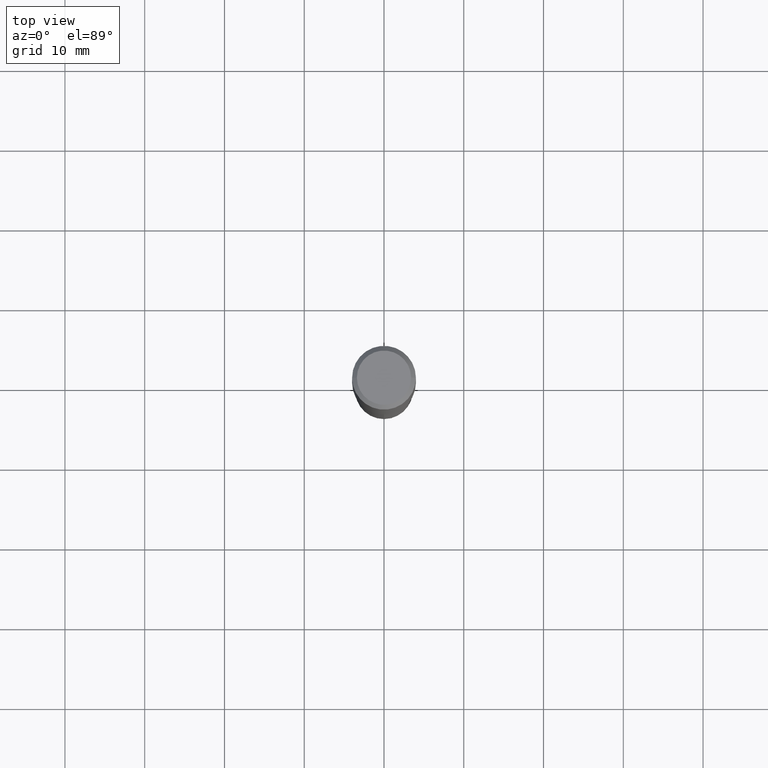
[diagram: clean part render]
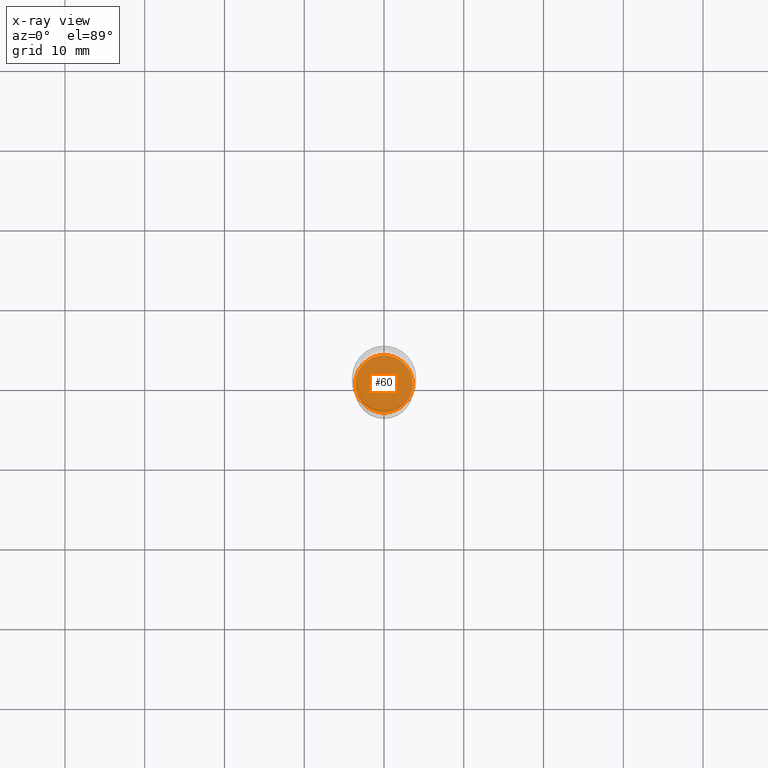
[diagram: x-ray — body ghosted, one internal face saturated and labeled with its STEP entity id]
A machine part, top view, then the same camera in x-ray: the body is ghosted and one INTERNAL B-rep face — a face not visible from any outside direction — is saturated and labeled: STEP entity #60.
In plain terms, the highlighted planar face has unit normal (-0, 0, 1).
Its self-contained STEP definition (entity closure, byte-faithful):
#13 = ORIENTED_EDGE ( 'NONE', *, *, #312, .F. ) ;
#41 = DIRECTION ( 'NONE',  ( -2.445468806185136597E-29, 3.491481338843145583E-15, 1.000000000000000000 ) ) ;
#48 = DIRECTION ( 'NONE',  ( -2.438088387897960049E-29, 3.491481338843145188E-15, 1.000000000000000000 ) ) ;
#60 = ADVANCED_FACE ( 'NONE', ( #160 ), #191, .F. ) ;
#63 = ORIENTED_EDGE ( 'NONE', *, *, #89, .F. ) ;
#89 = EDGE_CURVE ( 'NONE', #378, #464, #217, .T. ) ;
#111 = CARTESIAN_POINT ( 'NONE',  ( 0.1421999999999999931, -7.213051297916053224E-15, -1.781500000000000750 ) ) ;
#160 = FACE_OUTER_BOUND ( 'NONE', #348, .T. ) ;
#162 = CARTESIAN_POINT ( 'NONE',  ( 4.356602678218822085E-29, -6.220074005149066496E-15, -1.781500000000000750 ) ) ;
#191 = PLANE ( 'NONE',  #447 ) ;
#217 = CIRCLE ( 'NONE', #284, 0.1421999999999999931 ) ;
#229 = DIRECTION ( 'NONE',  ( 1.000000000000000000, -6.982962677686266711E-15, 0.000000000000000000 ) ) ;
#240 = CARTESIAN_POINT ( 'NONE',  ( 4.356602678218822085E-29, -6.220074005149066496E-15, -1.781500000000000750 ) ) ;
#247 = DIRECTION ( 'NONE',  ( 1.000000000000000000, -6.982962677686266711E-15, 0.000000000000000000 ) ) ;
#250 = CARTESIAN_POINT ( 'NONE',  ( -0.1421999999999999931, -5.207033007724092091E-15, -1.781500000000000750 ) ) ;
#284 = AXIS2_PLACEMENT_3D ( 'NONE', #162, #41, #229 ) ;
#312 = EDGE_CURVE ( 'NONE', #464, #378, #409, .T. ) ;
#348 = EDGE_LOOP ( 'NONE', ( #13, #63 ) ) ;
#378 = VERTEX_POINT ( 'NONE', #250 ) ;
#390 = AXIS2_PLACEMENT_3D ( 'NONE', #240, #431, #247 ) ;
#409 = CIRCLE ( 'NONE', #390, 0.1421999999999999931 ) ;
#431 = DIRECTION ( 'NONE',  ( -2.445468806185136597E-29, 3.491481338843145583E-15, 1.000000000000000000 ) ) ;
#447 = AXIS2_PLACEMENT_3D ( 'NONE', #453, #48, #471 ) ;
#453 = CARTESIAN_POINT ( 'NONE',  ( 1.966687531747703890E-29, -9.642568520418323754E-15, -1.781500000000000750 ) ) ;
#464 = VERTEX_POINT ( 'NONE', #111 ) ;
#471 = DIRECTION ( 'NONE',  ( 1.000000000000000000, -6.982962677686265922E-15, 4.876176775795935793E-29 ) ) ;